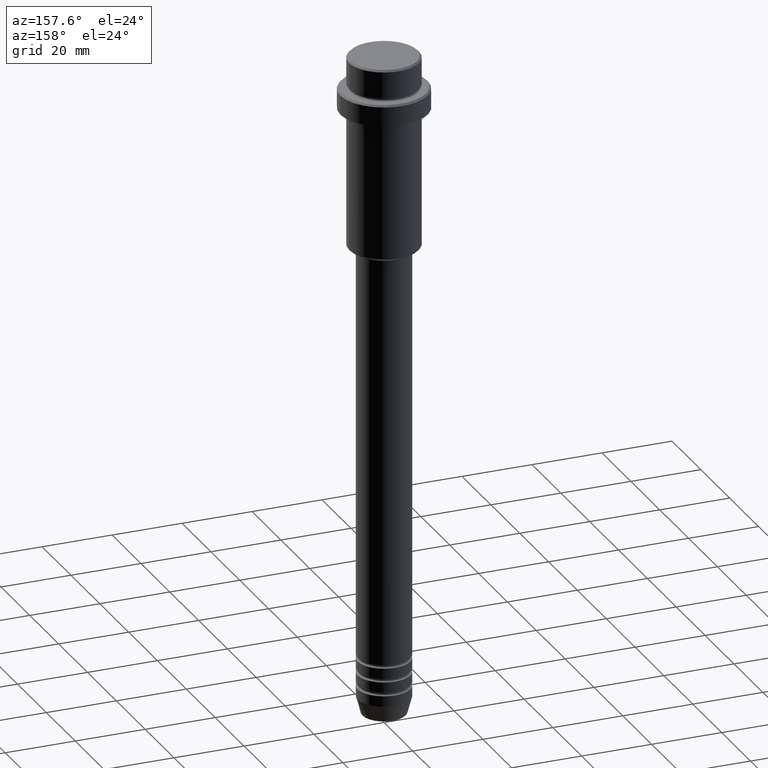
[diagram: clean part render]
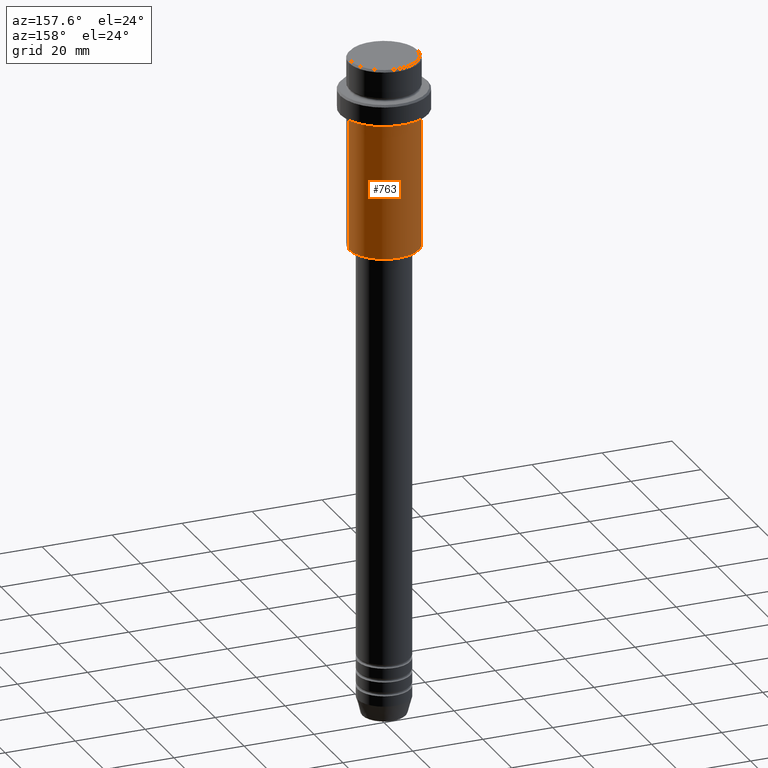
[diagram: same view with one face highlighted and labeled with its STEP entity id]
A machine part, auxiliary view. The second image highlights one B-rep face of the part: STEP entity #763.
In plain terms, the highlighted cylindrical surface (partial cylindrical patch) has radius 10 mm, axis along (-0, -0, 1).
Its self-contained STEP definition (entity closure, byte-faithful):
#9 = VECTOR ( 'NONE', #1058, 1000.000000000000000 ) ;
#32 = ORIENTED_EDGE ( 'NONE', *, *, #1031, .F. ) ;
#50 = DIRECTION ( 'NONE',  ( -0.000000000000000000, -0.000000000000000000, 1.000000000000000000 ) ) ;
#52 = DIRECTION ( 'NONE',  ( -1.000000000000000000, 0.000000000000000000, 0.000000000000000000 ) ) ;
#71 = EDGE_CURVE ( 'NONE', #821, #1264, #418, .T. ) ;
#202 = CYLINDRICAL_SURFACE ( 'NONE', #623, 10.00000000000000000 ) ;
#205 = VECTOR ( 'NONE', #50, 1000.000000000000000 ) ;
#243 = ORIENTED_EDGE ( 'NONE', *, *, #71, .T. ) ;
#267 = EDGE_CURVE ( 'NONE', #821, #1116, #1375, .T. ) ;
#327 = AXIS2_PLACEMENT_3D ( 'NONE', #1024, #1377, #1372 ) ;
#413 = CARTESIAN_POINT ( 'NONE',  ( 10.00000000000000000, 0.000000000000000000, 0.000000000000000000 ) ) ;
#418 = CIRCLE ( 'NONE', #861, 10.00000000000000000 ) ;
#542 = CARTESIAN_POINT ( 'NONE',  ( -10.00000000000000000, 1.224646799147353256E-15, -16.00000000000000000 ) ) ;
#551 = ORIENTED_EDGE ( 'NONE', *, *, #267, .F. ) ;
#560 = ORIENTED_EDGE ( 'NONE', *, *, #1102, .T. ) ;
#623 = AXIS2_PLACEMENT_3D ( 'NONE', #660, #1395, #644 ) ;
#644 = DIRECTION ( 'NONE',  ( 1.000000000000000000, 0.000000000000000000, 0.000000000000000000 ) ) ;
#660 = CARTESIAN_POINT ( 'NONE',  ( 0.000000000000000000, 0.000000000000000000, 0.000000000000000000 ) ) ;
#700 = VERTEX_POINT ( 'NONE', #542 ) ;
#702 = CARTESIAN_POINT ( 'NONE',  ( 0.000000000000000000, 0.000000000000000000, -54.50000000000002842 ) ) ;
#763 = ADVANCED_FACE ( 'NONE', ( #1190 ), #202, .T. ) ;
#821 = VERTEX_POINT ( 'NONE', #1063 ) ;
#861 = AXIS2_PLACEMENT_3D ( 'NONE', #702, #1138, #52 ) ;
#903 = EDGE_LOOP ( 'NONE', ( #243, #560, #32, #551 ) ) ;
#1024 = CARTESIAN_POINT ( 'NONE',  ( 0.000000000000000000, 0.000000000000000000, -16.00000000000000000 ) ) ;
#1031 = EDGE_CURVE ( 'NONE', #1116, #700, #1046, .T. ) ;
#1032 = LINE ( 'NONE', #1268, #205 ) ;
#1046 = CIRCLE ( 'NONE', #327, 10.00000000000000000 ) ;
#1058 = DIRECTION ( 'NONE',  ( -0.000000000000000000, -0.000000000000000000, 1.000000000000000000 ) ) ;
#1063 = CARTESIAN_POINT ( 'NONE',  ( 10.00000000000000000, 0.000000000000000000, -54.50000000000002842 ) ) ;
#1102 = EDGE_CURVE ( 'NONE', #1264, #700, #1032, .T. ) ;
#1116 = VERTEX_POINT ( 'NONE', #1365 ) ;
#1138 = DIRECTION ( 'NONE',  ( -0.000000000000000000, -0.000000000000000000, 1.000000000000000000 ) ) ;
#1190 = FACE_OUTER_BOUND ( 'NONE', #903, .T. ) ;
#1264 = VERTEX_POINT ( 'NONE', #1342 ) ;
#1268 = CARTESIAN_POINT ( 'NONE',  ( -10.00000000000000000, 1.224646799147353256E-15, 0.000000000000000000 ) ) ;
#1342 = CARTESIAN_POINT ( 'NONE',  ( -10.00000000000000000, 1.224646799147353256E-15, -54.50000000000002842 ) ) ;
#1365 = CARTESIAN_POINT ( 'NONE',  ( 10.00000000000000000, 0.000000000000000000, -16.00000000000000000 ) ) ;
#1372 = DIRECTION ( 'NONE',  ( 1.000000000000000000, 0.000000000000000000, 0.000000000000000000 ) ) ;
#1375 = LINE ( 'NONE', #413, #9 ) ;
#1377 = DIRECTION ( 'NONE',  ( -0.000000000000000000, -0.000000000000000000, 1.000000000000000000 ) ) ;
#1395 = DIRECTION ( 'NONE',  ( -0.000000000000000000, -0.000000000000000000, 1.000000000000000000 ) ) ;